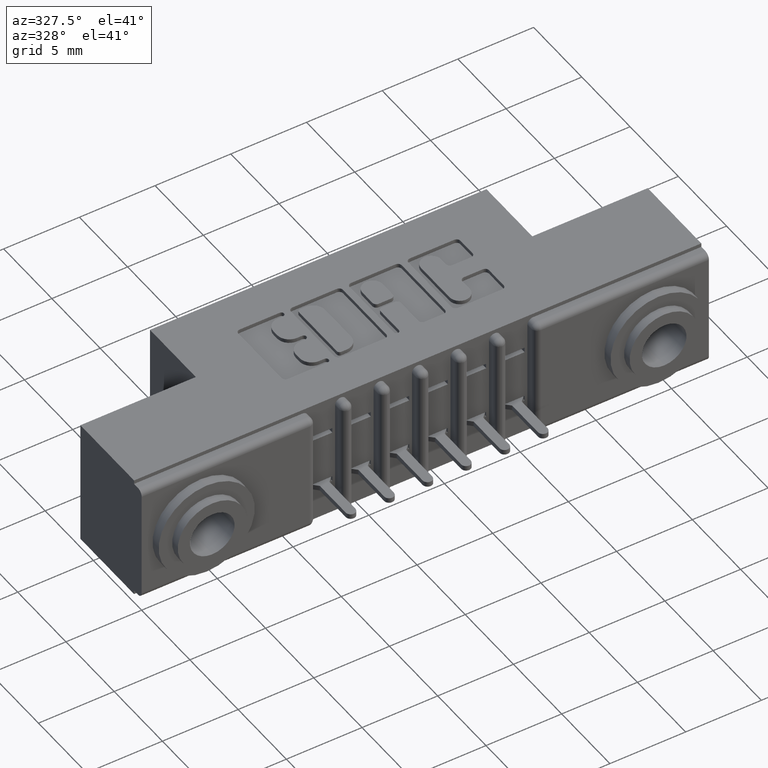
[diagram: clean part render]
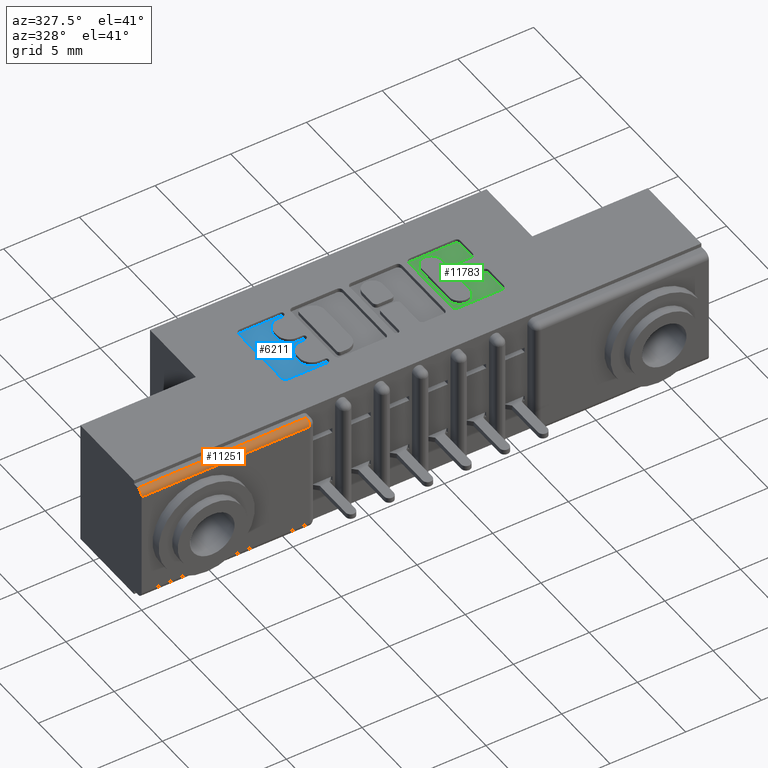
[diagram: same view with three faces highlighted in distinct colors, each labeled with its STEP entity id]
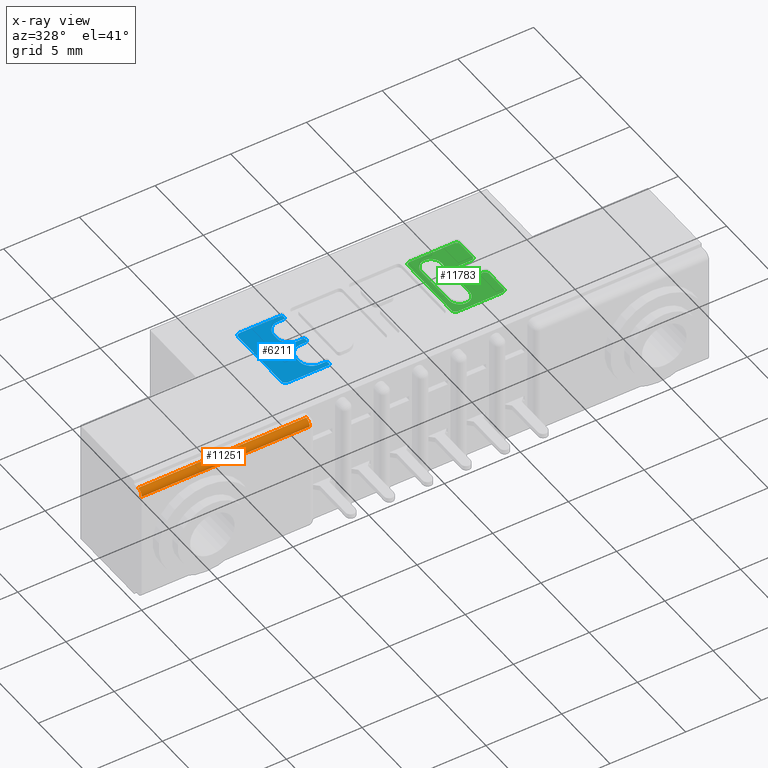
[diagram: x-ray of the same camera — body ghosted, the three highlighted faces saturated]
A machine part, auxiliary view with three faces highlighted in distinct colors.
The next image is the same camera in x-ray (body ghosted, the three faces saturated) — at least one of them is partly hidden behind the body in this view.
Their STEP definitions:

[orange] entity #11251 — the highlighted cylindrical surface (edge-blend (fillet) strip) has radius 0.381 mm, axis along (1, 0, 0).
#1072 = VERTEX_POINT ( 'NONE', #2945 ) ;
#1329 = ORIENTED_EDGE ( 'NONE', *, *, #2794, .F. ) ;
#2043 = EDGE_CURVE ( 'NONE', #11497, #4266, #11037, .T. ) ;
#2682 = AXIS2_PLACEMENT_3D ( 'NONE', #8222, #7206, #3949 ) ;
#2794 = EDGE_CURVE ( 'NONE', #4319, #4266, #7051, .T. ) ;
#2945 = CARTESIAN_POINT ( 'NONE',  ( 0.0000000000000000000, 0.0000000000000000000, -0.02499999999999997400 ) ) ;
#2958 = CARTESIAN_POINT ( 'NONE',  ( 0.0000000000000000000, 0.01499999999999999900, -0.009999999999999962000 ) ) ;
#3222 = LINE ( 'NONE', #10598, #5842 ) ;
#3321 = CARTESIAN_POINT ( 'NONE',  ( 0.4372500000000004200, 0.01499999999999999900, -0.02499999999999997400 ) ) ;
#3515 = EDGE_CURVE ( 'NONE', #1072, #4319, #4185, .T. ) ;
#3949 = DIRECTION ( 'NONE',  ( 0.0000000000000000000, 0.0000000000000000000, -1.000000000000000000 ) ) ;
#4185 = CIRCLE ( 'NONE', #10556, 0.01500000000000000300 ) ;
#4266 = VERTEX_POINT ( 'NONE', #6292 ) ;
#4319 = VERTEX_POINT ( 'NONE', #2958 ) ;
#4637 = CYLINDRICAL_SURFACE ( 'NONE', #2682, 0.01500000000000000300 ) ;
#4737 = EDGE_CURVE ( 'NONE', #11497, #1072, #3222, .T. ) ;
#5701 = DIRECTION ( 'NONE',  ( -1.000000000000000000, -0.0000000000000000000, -0.0000000000000000000 ) ) ;
#5842 = VECTOR ( 'NONE', #10474, 39.37007874015748100 ) ;
#6292 = CARTESIAN_POINT ( 'NONE',  ( 0.4372500000000003600, 0.01499999999999999900, -0.009999999999999962000 ) ) ;
#6641 = CARTESIAN_POINT ( 'NONE',  ( 1.474999999999999900, 0.01499999999999999900, -0.009999999999999962000 ) ) ;
#6996 = VECTOR ( 'NONE', #9693, 39.37007874015748100 ) ;
#7051 = LINE ( 'NONE', #6641, #6996 ) ;
#7206 = DIRECTION ( 'NONE',  ( 1.000000000000000000, 0.0000000000000000000, 0.0000000000000000000 ) ) ;
#7286 = DIRECTION ( 'NONE',  ( 0.0000000000000000000, 8.537024980200820800E-016, -1.000000000000000000 ) ) ;
#7652 = ORIENTED_EDGE ( 'NONE', *, *, #3515, .F. ) ;
#7653 = ORIENTED_EDGE ( 'NONE', *, *, #2043, .T. ) ;
#7729 = CARTESIAN_POINT ( 'NONE',  ( 0.4372500000000004200, 0.0000000000000000000, -0.02499999999999997400 ) ) ;
#8222 = CARTESIAN_POINT ( 'NONE',  ( 0.0000000000000000000, 0.01499999999999999900, -0.02499999999999997400 ) ) ;
#9693 = DIRECTION ( 'NONE',  ( 1.000000000000000000, -0.0000000000000000000, -0.0000000000000000000 ) ) ;
#10005 = CARTESIAN_POINT ( 'NONE',  ( 0.0000000000000000000, 0.01499999999999999900, -0.02499999999999997400 ) ) ;
#10051 = FACE_OUTER_BOUND ( 'NONE', #11731, .T. ) ;
#10422 = ORIENTED_EDGE ( 'NONE', *, *, #4737, .F. ) ;
#10474 = DIRECTION ( 'NONE',  ( -1.000000000000000000, 0.0000000000000000000, 0.0000000000000000000 ) ) ;
#10556 = AXIS2_PLACEMENT_3D ( 'NONE', #10005, #11801, #11510 ) ;
#10598 = CARTESIAN_POINT ( 'NONE',  ( 0.0000000000000000000, 0.0000000000000000000, -0.02499999999999997400 ) ) ;
#11037 = CIRCLE ( 'NONE', #12120, 0.01500000000000000300 ) ;
#11251 = ADVANCED_FACE ( 'NONE', ( #10051 ), #4637, .T. ) ;
#11497 = VERTEX_POINT ( 'NONE', #7729 ) ;
#11510 = DIRECTION ( 'NONE',  ( 0.0000000000000000000, 8.537024980200820800E-016, -1.000000000000000000 ) ) ;
#11731 = EDGE_LOOP ( 'NONE', ( #10422, #7653, #1329, #7652 ) ) ;
#11801 = DIRECTION ( 'NONE',  ( -1.000000000000000000, 0.0000000000000000000, -0.0000000000000000000 ) ) ;
#12120 = AXIS2_PLACEMENT_3D ( 'NONE', #3321, #5701, #7286 ) ;

[blue] entity #6211 — the highlighted planar face has unit normal (0, 0, 1).
#20 = CIRCLE ( 'NONE', #4023, 0.006870969142648501700 ) ;
#44 = VERTEX_POINT ( 'NONE', #2287 ) ;
#45 = VECTOR ( 'NONE', #357, 39.37007874015748100 ) ;
#88 = DIRECTION ( 'NONE',  ( -0.0000000000000000000, 0.0000000000000000000, 1.000000000000000000 ) ) ;
#90 = VERTEX_POINT ( 'NONE', #10873 ) ;
#357 = DIRECTION ( 'NONE',  ( 0.0000000000000000000, 1.000000000000000000, -0.0000000000000000000 ) ) ;
#398 = CARTESIAN_POINT ( 'NONE',  ( 0.5257269153529278100, 0.0000000000000000000, -0.01000000000000000000 ) ) ;
#420 = DIRECTION ( 'NONE',  ( 1.000000000000000000, 0.0000000000000000000, 0.0000000000000000000 ) ) ;
#439 = DIRECTION ( 'NONE',  ( -0.0000000000000000000, 0.0000000000000000000, 1.000000000000000000 ) ) ;
#456 = CARTESIAN_POINT ( 'NONE',  ( 0.4663421106199222000, 0.1456589681657917100, -0.01000000000000000000 ) ) ;
#488 = CIRCLE ( 'NONE', #1294, 0.03141014465217447500 ) ;
#507 = EDGE_CURVE ( 'NONE', #7103, #7727, #488, .T. ) ;
#602 = CARTESIAN_POINT ( 'NONE',  ( 0.5571370600050841200, 0.2408709691426856000, -0.01000000000000000000 ) ) ;
#605 = ORIENTED_EDGE ( 'NONE', *, *, #7739, .T. ) ;
#734 = VERTEX_POINT ( 'NONE', #9621 ) ;
#771 = LINE ( 'NONE', #6923, #9235 ) ;
#1149 = EDGE_LOOP ( 'NONE', ( #12683, #4167, #6771, #9206, #9382, #7443, #8518, #605, #3856, #8428, #2134, #3682, #6626, #9858, #3934, #5947, #7694, #9143, #5950, #1805, #9257 ) ) ;
#1161 = CARTESIAN_POINT ( 'NONE',  ( 0.5571370600051096500, 0.1495852362473103800, -0.01000000000000000000 ) ) ;
#1294 = AXIS2_PLACEMENT_3D ( 'NONE', #5989, #6071, #5555 ) ;
#1781 = EDGE_CURVE ( 'NONE', #2225, #7727, #3048, .T. ) ;
#1805 = ORIENTED_EDGE ( 'NONE', *, *, #507, .F. ) ;
#2006 = EDGE_CURVE ( 'NONE', #8549, #5697, #10999, .T. ) ;
#2030 = CIRCLE ( 'NONE', #9578, 0.006870969142662229500 ) ;
#2134 = ORIENTED_EDGE ( 'NONE', *, *, #4523, .T. ) ;
#2225 = VERTEX_POINT ( 'NONE', #6658 ) ;
#2287 = CARTESIAN_POINT ( 'NONE',  ( 0.5571370600051254200, 0.3184147637527374200, -0.01000000000000000000 ) ) ;
#2402 = CARTESIAN_POINT ( 'NONE',  ( 0.5706336064154143900, 0.1358432979619874600, -0.01000000000000000000 ) ) ;
#2611 = CARTESIAN_POINT ( 'NONE',  ( 0.5257269153529278100, 0.1809953808994921600, -0.01000000000000000000 ) ) ;
#2754 = DIRECTION ( 'NONE',  ( 0.0000000000000000000, 1.000000000000000000, -0.0000000000000000000 ) ) ;
#2795 = DIRECTION ( 'NONE',  ( -0.0000000000000000000, 0.0000000000000000000, 1.000000000000000000 ) ) ;
#2825 = VERTEX_POINT ( 'NONE', #6420 ) ;
#2838 = CIRCLE ( 'NONE', #10263, 0.03141014465215624000 ) ;
#2914 = CARTESIAN_POINT ( 'NONE',  ( 0.5257269153529096100, 0.0000000000000000000, -0.01000000000000000000 ) ) ;
#2957 = CARTESIAN_POINT ( 'NONE',  ( 0.4565264404161154500, 0.0000000000000000000, -0.01000000000000000000 ) ) ;
#3037 = EDGE_CURVE ( 'NONE', #9887, #8549, #6105, .T. ) ;
#3048 = LINE ( 'NONE', #10429, #4682 ) ;
#3096 = EDGE_CURVE ( 'NONE', #44, #7923, #5944, .T. ) ;
#3118 = VECTOR ( 'NONE', #9271, 39.37007874015748100 ) ;
#3184 = VERTEX_POINT ( 'NONE', #8115 ) ;
#3309 = EDGE_CURVE ( 'NONE', #3184, #11075, #4974, .T. ) ;
#3625 = VECTOR ( 'NONE', #2754, 39.37007874015748100 ) ;
#3682 = ORIENTED_EDGE ( 'NONE', *, *, #6086, .T. ) ;
#3706 = CARTESIAN_POINT ( 'NONE',  ( 0.5706336065353513300, 0.3321567020380344900, -0.01000000000000000000 ) ) ;
#3779 = EDGE_CURVE ( 'NONE', #9887, #734, #2838, .T. ) ;
#3799 = CIRCLE ( 'NONE', #6750, 0.009815670203805868300 ) ;
#3856 = ORIENTED_EDGE ( 'NONE', *, *, #7143, .T. ) ;
#3934 = ORIENTED_EDGE ( 'NONE', *, *, #3779, .F. ) ;
#4023 = AXIS2_PLACEMENT_3D ( 'NONE', #12245, #6953, #12925 ) ;
#4038 = VERTEX_POINT ( 'NONE', #12523 ) ;
#4167 = ORIENTED_EDGE ( 'NONE', *, *, #11655, .T. ) ;
#4516 = CARTESIAN_POINT ( 'NONE',  ( 0.0000000000000000000, 0.3321567020380344900, -0.01000000000000000000 ) ) ;
#4523 = EDGE_CURVE ( 'NONE', #10767, #4038, #2030, .T. ) ;
#4682 = VECTOR ( 'NONE', #10594, 39.37007874015748100 ) ;
#4974 = CIRCLE ( 'NONE', #10832, 0.006870969142648501700 ) ;
#4979 = VECTOR ( 'NONE', #10518, 39.37007874015748100 ) ;
#5084 = CIRCLE ( 'NONE', #8749, 0.03141014465218178200 ) ;
#5258 = EDGE_CURVE ( 'NONE', #11068, #734, #11328, .T. ) ;
#5495 = AXIS2_PLACEMENT_3D ( 'NONE', #9132, #2795, #10055 ) ;
#5515 = AXIS2_PLACEMENT_3D ( 'NONE', #7075, #88, #8089 ) ;
#5548 = EDGE_CURVE ( 'NONE', #11068, #8849, #5084, .T. ) ;
#5555 = DIRECTION ( 'NONE',  ( 1.000000000000000000, 0.0000000000000000000, 0.0000000000000000000 ) ) ;
#5697 = VERTEX_POINT ( 'NONE', #7090 ) ;
#5944 = CIRCLE ( 'NONE', #11190, 0.03141014465221585900 ) ;
#5947 = ORIENTED_EDGE ( 'NONE', *, *, #3037, .T. ) ;
#5950 = ORIENTED_EDGE ( 'NONE', *, *, #1781, .T. ) ;
#5989 = CARTESIAN_POINT ( 'NONE',  ( 0.5571370600050841200, 0.2722811137948600900, -0.01000000000000000000 ) ) ;
#6071 = DIRECTION ( 'NONE',  ( -0.0000000000000000000, 0.0000000000000000000, 1.000000000000000000 ) ) ;
#6086 = EDGE_CURVE ( 'NONE', #4038, #8849, #7277, .T. ) ;
#6087 = VECTOR ( 'NONE', #9670, 39.37007874015748100 ) ;
#6090 = CARTESIAN_POINT ( 'NONE',  ( 0.5706336065353355700, 0.1427142671046497100, -0.01000000000000000000 ) ) ;
#6105 = LINE ( 'NONE', #7551, #6087 ) ;
#6114 = CARTESIAN_POINT ( 'NONE',  ( 0.5571370600051254200, 0.2870046191005216100, -0.01000000000000000000 ) ) ;
#6128 = DIRECTION ( 'NONE',  ( -0.0000000000000000000, 0.0000000000000000000, 1.000000000000000000 ) ) ;
#6184 = DIRECTION ( 'NONE',  ( -0.0000000000000000000, 0.0000000000000000000, 1.000000000000000000 ) ) ;
#6211 = ADVANCED_FACE ( 'NONE', ( #7749 ), #7901, .T. ) ;
#6269 = DIRECTION ( 'NONE',  ( 1.000000000000000000, 0.0000000000000000000, 0.0000000000000000000 ) ) ;
#6420 = CARTESIAN_POINT ( 'NONE',  ( 0.4565264404161154500, 0.3223410318342118700, -0.01000000000000000000 ) ) ;
#6500 = LINE ( 'NONE', #7987, #11230 ) ;
#6513 = CARTESIAN_POINT ( 'NONE',  ( 0.5257269153529096100, 0.2870046191005216100, -0.01000000000000000000 ) ) ;
#6533 = EDGE_CURVE ( 'NONE', #7537, #10767, #10782, .T. ) ;
#6620 = VECTOR ( 'NONE', #10417, 39.37007874015748100 ) ;
#6626 = ORIENTED_EDGE ( 'NONE', *, *, #5548, .F. ) ;
#6658 = CARTESIAN_POINT ( 'NONE',  ( 0.5706336065353100300, 0.2408709691426856000, -0.01000000000000000000 ) ) ;
#6713 = VERTEX_POINT ( 'NONE', #10973 ) ;
#6750 = AXIS2_PLACEMENT_3D ( 'NONE', #456, #439, #420 ) ;
#6771 = ORIENTED_EDGE ( 'NONE', *, *, #10196, .T. ) ;
#6817 = DIRECTION ( 'NONE',  ( 1.000000000000000000, 6.876017002796120400E-015, 0.0000000000000000000 ) ) ;
#6896 = CARTESIAN_POINT ( 'NONE',  ( 0.5775045756779977300, 0.1427142671046497100, -0.01000000000000000000 ) ) ;
#6923 = CARTESIAN_POINT ( 'NONE',  ( -9.340608265024984900E-016, 0.1358432979619835200, -0.01000000000000000000 ) ) ;
#6953 = DIRECTION ( 'NONE',  ( -0.0000000000000000000, 0.0000000000000000000, 1.000000000000000000 ) ) ;
#6956 = VERTEX_POINT ( 'NONE', #8714 ) ;
#7075 = CARTESIAN_POINT ( 'NONE',  ( 0.5706336065353100300, 0.2340000000000221100, -0.01000000000000000000 ) ) ;
#7090 = CARTESIAN_POINT ( 'NONE',  ( 0.5775045756779735300, 0.2340000000000221100, -0.01000000000000000000 ) ) ;
#7103 = VERTEX_POINT ( 'NONE', #7511 ) ;
#7143 = EDGE_CURVE ( 'NONE', #6956, #7537, #771, .T. ) ;
#7219 = DIRECTION ( 'NONE',  ( -0.0000000000000000000, 0.0000000000000000000, 1.000000000000000000 ) ) ;
#7254 = CARTESIAN_POINT ( 'NONE',  ( 0.5706336065353513300, 0.3252857328953879800, -0.01000000000000000000 ) ) ;
#7277 = LINE ( 'NONE', #10751, #6620 ) ;
#7328 = DIRECTION ( 'NONE',  ( 1.000000000000000000, 0.0000000000000000000, 0.0000000000000000000 ) ) ;
#7443 = ORIENTED_EDGE ( 'NONE', *, *, #9037, .T. ) ;
#7465 = EDGE_CURVE ( 'NONE', #7103, #7923, #9522, .T. ) ;
#7482 = CARTESIAN_POINT ( 'NONE',  ( 0.5706336065353514500, 0.3184147637527374200, -0.01000000000000000000 ) ) ;
#7511 = CARTESIAN_POINT ( 'NONE',  ( 0.5257269153529096100, 0.2722811137948600900, -0.01000000000000000000 ) ) ;
#7526 = CIRCLE ( 'NONE', #5495, 0.009815670203822599700 ) ;
#7537 = VERTEX_POINT ( 'NONE', #2402 ) ;
#7551 = CARTESIAN_POINT ( 'NONE',  ( 0.0000000000000000000, 0.2271290308573585800, -0.01000000000000000000 ) ) ;
#7611 = DIRECTION ( 'NONE',  ( 1.000000000000000000, 0.0000000000000000000, 0.0000000000000000000 ) ) ;
#7680 = DIRECTION ( 'NONE',  ( -0.0000000000000000000, 0.0000000000000000000, 1.000000000000000000 ) ) ;
#7694 = ORIENTED_EDGE ( 'NONE', *, *, #2006, .T. ) ;
#7727 = VERTEX_POINT ( 'NONE', #602 ) ;
#7739 = EDGE_CURVE ( 'NONE', #90, #6956, #3799, .T. ) ;
#7749 = FACE_OUTER_BOUND ( 'NONE', #1149, .T. ) ;
#7778 = CARTESIAN_POINT ( 'NONE',  ( 0.0000000000000000000, 0.0000000000000000000, -0.01000000000000000000 ) ) ;
#7788 = AXIS2_PLACEMENT_3D ( 'NONE', #12432, #12425, #12411 ) ;
#7855 = VERTEX_POINT ( 'NONE', #7482 ) ;
#7901 = PLANE ( 'NONE',  #8066 ) ;
#7923 = VERTEX_POINT ( 'NONE', #6513 ) ;
#7987 = CARTESIAN_POINT ( 'NONE',  ( 0.0000000000000000000, 0.3184147637527374200, -0.01000000000000000000 ) ) ;
#8066 = AXIS2_PLACEMENT_3D ( 'NONE', #7778, #7680, #7611 ) ;
#8089 = DIRECTION ( 'NONE',  ( 1.000000000000000000, 0.0000000000000000000, 0.0000000000000000000 ) ) ;
#8115 = CARTESIAN_POINT ( 'NONE',  ( 0.5775045756779998400, 0.3252857328953879800, -0.01000000000000000000 ) ) ;
#8309 = DIRECTION ( 'NONE',  ( 1.000000000000000000, 0.0000000000000000000, 0.0000000000000000000 ) ) ;
#8375 = DIRECTION ( 'NONE',  ( -0.0000000000000000000, 0.0000000000000000000, 1.000000000000000000 ) ) ;
#8405 = EDGE_CURVE ( 'NONE', #2825, #90, #11151, .T. ) ;
#8428 = ORIENTED_EDGE ( 'NONE', *, *, #6533, .T. ) ;
#8518 = ORIENTED_EDGE ( 'NONE', *, *, #8405, .T. ) ;
#8549 = VERTEX_POINT ( 'NONE', #12629 ) ;
#8714 = CARTESIAN_POINT ( 'NONE',  ( 0.4663421106199185900, 0.1358432979619867400, -0.01000000000000000000 ) ) ;
#8749 = AXIS2_PLACEMENT_3D ( 'NONE', #12159, #12127, #12110 ) ;
#8849 = VERTEX_POINT ( 'NONE', #1161 ) ;
#8928 = DIRECTION ( 'NONE',  ( 1.000000000000000000, 0.0000000000000000000, 0.0000000000000000000 ) ) ;
#8972 = EDGE_CURVE ( 'NONE', #5697, #2225, #10870, .T. ) ;
#9037 = EDGE_CURVE ( 'NONE', #6713, #2825, #7526, .T. ) ;
#9132 = CARTESIAN_POINT ( 'NONE',  ( 0.4663421106199380800, 0.3223410318342118700, -0.01000000000000000000 ) ) ;
#9143 = ORIENTED_EDGE ( 'NONE', *, *, #8972, .T. ) ;
#9206 = ORIENTED_EDGE ( 'NONE', *, *, #3309, .T. ) ;
#9235 = VECTOR ( 'NONE', #6817, 39.37007874015748100 ) ;
#9257 = ORIENTED_EDGE ( 'NONE', *, *, #7465, .T. ) ;
#9271 = DIRECTION ( 'NONE',  ( 0.0000000000000000000, -1.000000000000000000, 0.0000000000000000000 ) ) ;
#9374 = EDGE_CURVE ( 'NONE', #11075, #6713, #12601, .T. ) ;
#9382 = ORIENTED_EDGE ( 'NONE', *, *, #9374, .T. ) ;
#9404 = CARTESIAN_POINT ( 'NONE',  ( 0.5571370600050841200, 0.2271290308573585800, -0.01000000000000000000 ) ) ;
#9522 = LINE ( 'NONE', #2914, #3625 ) ;
#9578 = AXIS2_PLACEMENT_3D ( 'NONE', #6090, #6184, #6269 ) ;
#9621 = CARTESIAN_POINT ( 'NONE',  ( 0.5257269153529278100, 0.1957188862052023100, -0.01000000000000000000 ) ) ;
#9670 = DIRECTION ( 'NONE',  ( 1.000000000000000000, 0.0000000000000000000, 0.0000000000000000000 ) ) ;
#9748 = DIRECTION ( 'NONE',  ( 1.000000000000000000, 0.0000000000000000000, 0.0000000000000000000 ) ) ;
#9769 = DIRECTION ( 'NONE',  ( -0.0000000000000000000, 0.0000000000000000000, 1.000000000000000000 ) ) ;
#9858 = ORIENTED_EDGE ( 'NONE', *, *, #5258, .T. ) ;
#9887 = VERTEX_POINT ( 'NONE', #9404 ) ;
#9969 = CARTESIAN_POINT ( 'NONE',  ( 0.5571370600050841200, 0.1957188862052023100, -0.01000000000000000000 ) ) ;
#10044 = DIRECTION ( 'NONE',  ( 1.000000000000000000, 0.0000000000000000000, 0.0000000000000000000 ) ) ;
#10055 = DIRECTION ( 'NONE',  ( 1.000000000000000000, 0.0000000000000000000, 0.0000000000000000000 ) ) ;
#10196 = EDGE_CURVE ( 'NONE', #7855, #3184, #20, .T. ) ;
#10263 = AXIS2_PLACEMENT_3D ( 'NONE', #9969, #9769, #9748 ) ;
#10417 = DIRECTION ( 'NONE',  ( -1.000000000000000000, -1.189163988687022500E-013, 0.0000000000000000000 ) ) ;
#10429 = CARTESIAN_POINT ( 'NONE',  ( 0.0000000000000000000, 0.2408709691426856000, -0.01000000000000000000 ) ) ;
#10518 = DIRECTION ( 'NONE',  ( -1.000000000000000000, 0.0000000000000000000, 0.0000000000000000000 ) ) ;
#10594 = DIRECTION ( 'NONE',  ( -1.000000000000000000, 0.0000000000000000000, 0.0000000000000000000 ) ) ;
#10751 = CARTESIAN_POINT ( 'NONE',  ( -1.778813761844634200E-014, 0.1495852362472441200, -0.01000000000000000000 ) ) ;
#10767 = VERTEX_POINT ( 'NONE', #6896 ) ;
#10782 = CIRCLE ( 'NONE', #7788, 0.006870969142662229500 ) ;
#10832 = AXIS2_PLACEMENT_3D ( 'NONE', #7254, #8375, #8309 ) ;
#10870 = CIRCLE ( 'NONE', #5515, 0.006870969142663527000 ) ;
#10873 = CARTESIAN_POINT ( 'NONE',  ( 0.4565264404161154500, 0.1456589681657917100, -0.01000000000000000000 ) ) ;
#10973 = CARTESIAN_POINT ( 'NONE',  ( 0.4663421106199380800, 0.3321567020380344900, -0.01000000000000000000 ) ) ;
#10999 = CIRCLE ( 'NONE', #12132, 0.006870969142663527000 ) ;
#11068 = VERTEX_POINT ( 'NONE', #2611 ) ;
#11075 = VERTEX_POINT ( 'NONE', #3706 ) ;
#11082 = CARTESIAN_POINT ( 'NONE',  ( 0.5706336065353100300, 0.2340000000000221100, -0.01000000000000000000 ) ) ;
#11151 = LINE ( 'NONE', #2957, #3118 ) ;
#11190 = AXIS2_PLACEMENT_3D ( 'NONE', #6114, #6128, #7328 ) ;
#11230 = VECTOR ( 'NONE', #8928, 39.37007874015748100 ) ;
#11328 = LINE ( 'NONE', #398, #45 ) ;
#11655 = EDGE_CURVE ( 'NONE', #44, #7855, #6500, .T. ) ;
#12110 = DIRECTION ( 'NONE',  ( 1.000000000000000000, 0.0000000000000000000, 0.0000000000000000000 ) ) ;
#12127 = DIRECTION ( 'NONE',  ( -0.0000000000000000000, 0.0000000000000000000, 1.000000000000000000 ) ) ;
#12132 = AXIS2_PLACEMENT_3D ( 'NONE', #11082, #7219, #10044 ) ;
#12159 = CARTESIAN_POINT ( 'NONE',  ( 0.5571370600051096500, 0.1809953808994921600, -0.01000000000000000000 ) ) ;
#12245 = CARTESIAN_POINT ( 'NONE',  ( 0.5706336065353513300, 0.3252857328953879800, -0.01000000000000000000 ) ) ;
#12411 = DIRECTION ( 'NONE',  ( 1.000000000000000000, 0.0000000000000000000, 0.0000000000000000000 ) ) ;
#12425 = DIRECTION ( 'NONE',  ( -0.0000000000000000000, 0.0000000000000000000, 1.000000000000000000 ) ) ;
#12432 = CARTESIAN_POINT ( 'NONE',  ( 0.5706336065353355700, 0.1427142671046497100, -0.01000000000000000000 ) ) ;
#12523 = CARTESIAN_POINT ( 'NONE',  ( 0.5706336064154143900, 0.1495852362473119600, -0.01000000000000000000 ) ) ;
#12601 = LINE ( 'NONE', #4516, #4979 ) ;
#12629 = CARTESIAN_POINT ( 'NONE',  ( 0.5706336064153888500, 0.2271290308573585800, -0.01000000000000000000 ) ) ;
#12683 = ORIENTED_EDGE ( 'NONE', *, *, #3096, .F. ) ;
#12925 = DIRECTION ( 'NONE',  ( 1.000000000000000000, 0.0000000000000000000, 0.0000000000000000000 ) ) ;

[green] entity #11783 — the highlighted planar face has unit normal (0, 0, 1).
#287 = EDGE_CURVE ( 'NONE', #4441, #4814, #1847, .T. ) ;
#371 = ORIENTED_EDGE ( 'NONE', *, *, #5254, .T. ) ;
#447 = CIRCLE ( 'NONE', #8614, 0.009815670203787221800 ) ;
#511 = CARTESIAN_POINT ( 'NONE',  ( 0.0000000000000000000, 0.2629562271012354000, -0.01000000000000000000 ) ) ;
#549 = DIRECTION ( 'NONE',  ( 1.000000000000000000, 0.0000000000000000000, 0.0000000000000000000 ) ) ;
#575 = VERTEX_POINT ( 'NONE', #5760 ) ;
#579 = AXIS2_PLACEMENT_3D ( 'NONE', #622, #8469, #1917 ) ;
#622 = CARTESIAN_POINT ( 'NONE',  ( 1.024362961706132100, 0.3223410318342127500, -0.01000000000000000000 ) ) ;
#768 = VECTOR ( 'NONE', #8920, 39.37007874015748100 ) ;
#819 = CARTESIAN_POINT ( 'NONE',  ( 0.9124643213828184100, 0.2921578459575313600, -0.01000000000000000000 ) ) ;
#867 = LINE ( 'NONE', #9605, #768 ) ;
#1055 = DIRECTION ( 'NONE',  ( -0.0000000000000000000, 0.0000000000000000000, 1.000000000000000000 ) ) ;
#1109 = VERTEX_POINT ( 'NONE', #3732 ) ;
#1123 = VERTEX_POINT ( 'NONE', #2164 ) ;
#1171 = DIRECTION ( 'NONE',  ( -0.0000000000000000000, 0.0000000000000000000, 1.000000000000000000 ) ) ;
#1206 = VERTEX_POINT ( 'NONE', #4407 ) ;
#1238 = ORIENTED_EDGE ( 'NONE', *, *, #9796, .T. ) ;
#1399 = ORIENTED_EDGE ( 'NONE', *, *, #5678, .F. ) ;
#1576 = VERTEX_POINT ( 'NONE', #10068 ) ;
#1580 = VECTOR ( 'NONE', #9136, 39.37007874015748100 ) ;
#1779 = DIRECTION ( 'NONE',  ( -1.000000000000000000, 0.0000000000000000000, 0.0000000000000000000 ) ) ;
#1809 = ORIENTED_EDGE ( 'NONE', *, *, #2446, .T. ) ;
#1847 = LINE ( 'NONE', #5536, #1580 ) ;
#1885 = CARTESIAN_POINT ( 'NONE',  ( 0.9649781569731659100, 0.2921578454992616600, -0.01000000000000000000 ) ) ;
#1892 = EDGE_CURVE ( 'NONE', #3261, #4441, #11249, .T. ) ;
#1917 = DIRECTION ( 'NONE',  ( 1.000000000000000000, 0.0000000000000000000, 0.0000000000000000000 ) ) ;
#1958 = AXIS2_PLACEMENT_3D ( 'NONE', #8161, #12415, #7193 ) ;
#1983 = ORIENTED_EDGE ( 'NONE', *, *, #1892, .T. ) ;
#2102 = DIRECTION ( 'NONE',  ( -0.0000000000000000000, 0.0000000000000000000, 1.000000000000000000 ) ) ;
#2123 = VERTEX_POINT ( 'NONE', #10831 ) ;
#2128 = FACE_OUTER_BOUND ( 'NONE', #8610, .T. ) ;
#2164 = CARTESIAN_POINT ( 'NONE',  ( 0.9649781569731790100, 0.1758421540424547600, -0.01000000000000000000 ) ) ;
#2353 = VECTOR ( 'NONE', #9363, 39.37007874015748100 ) ;
#2377 = VECTOR ( 'NONE', #4483, 39.37007874015748100 ) ;
#2388 = CARTESIAN_POINT ( 'NONE',  ( 0.9649781569731790100, 0.2055345564089704500, -0.01000000000000000000 ) ) ;
#2446 = EDGE_CURVE ( 'NONE', #1109, #7560, #8927, .T. ) ;
#2818 = DIRECTION ( 'NONE',  ( 1.000000000000000000, 0.0000000000000000000, 0.0000000000000000000 ) ) ;
#2854 = EDGE_CURVE ( 'NONE', #2123, #1109, #6952, .T. ) ;
#2959 = DIRECTION ( 'NONE',  ( -0.0000000000000000000, 0.0000000000000000000, 1.000000000000000000 ) ) ;
#3033 = AXIS2_PLACEMENT_3D ( 'NONE', #7911, #1171, #8868 ) ;
#3218 = VERTEX_POINT ( 'NONE', #1885 ) ;
#3251 = CIRCLE ( 'NONE', #4896, 0.009815670203806754800 ) ;
#3261 = VERTEX_POINT ( 'NONE', #9594 ) ;
#3336 = CARTESIAN_POINT ( 'NONE',  ( 1.024362961706134300, 0.1456589681657917100, -0.01000000000000000000 ) ) ;
#3346 = LINE ( 'NONE', #8337, #8669 ) ;
#3478 = DIRECTION ( 'NONE',  ( 0.0000000000000000000, -1.000000000000000000, 0.0000000000000000000 ) ) ;
#3630 = AXIS2_PLACEMENT_3D ( 'NONE', #6266, #12512, #7337 ) ;
#3679 = DIRECTION ( 'NONE',  ( -0.0000000000000000000, 0.0000000000000000000, 1.000000000000000000 ) ) ;
#3732 = CARTESIAN_POINT ( 'NONE',  ( 0.9747938271769670500, 0.2153502266127593200, -0.01000000000000000000 ) ) ;
#3939 = ORIENTED_EDGE ( 'NONE', *, *, #10616, .T. ) ;
#4175 = VECTOR ( 'NONE', #11886, 39.37007874015748100 ) ;
#4189 = VECTOR ( 'NONE', #7432, 39.37007874015748100 ) ;
#4196 = EDGE_CURVE ( 'NONE', #12190, #10076, #867, .T. ) ;
#4407 = CARTESIAN_POINT ( 'NONE',  ( 0.9085380533012653600, 0.1358432979619849400, -0.01000000000000000000 ) ) ;
#4441 = VERTEX_POINT ( 'NONE', #12559 ) ;
#4483 = DIRECTION ( 'NONE',  ( 1.000000000000000000, 0.0000000000000000000, 0.0000000000000000000 ) ) ;
#4498 = CARTESIAN_POINT ( 'NONE',  ( 1.034178631909940200, 0.2055345564089722000, -0.01000000000000000000 ) ) ;
#4513 = ORIENTED_EDGE ( 'NONE', *, *, #9519, .T. ) ;
#4546 = EDGE_CURVE ( 'NONE', #5758, #12190, #5898, .T. ) ;
#4600 = CARTESIAN_POINT ( 'NONE',  ( 0.9649781569731790100, 0.0000000000000000000, -0.01000000000000000000 ) ) ;
#4760 = CIRCLE ( 'NONE', #579, 0.009815670203840084000 ) ;
#4807 = CARTESIAN_POINT ( 'NONE',  ( 0.9124643213828184100, 0.1758421540424547600, -0.01000000000000000000 ) ) ;
#4814 = VERTEX_POINT ( 'NONE', #8747 ) ;
#4896 = AXIS2_PLACEMENT_3D ( 'NONE', #9875, #3679, #10761 ) ;
#5039 = CARTESIAN_POINT ( 'NONE',  ( 0.9085380533012994400, 0.3321567020380528100, -0.01000000000000000000 ) ) ;
#5070 = CARTESIAN_POINT ( 'NONE',  ( 0.8987223830974585500, 0.1456589681657917100, -0.01000000000000000000 ) ) ;
#5086 = ORIENTED_EDGE ( 'NONE', *, *, #5659, .T. ) ;
#5231 = ORIENTED_EDGE ( 'NONE', *, *, #12208, .T. ) ;
#5254 = EDGE_CURVE ( 'NONE', #9959, #3261, #6649, .T. ) ;
#5435 = DIRECTION ( 'NONE',  ( 1.000000000000000000, 0.0000000000000000000, 0.0000000000000000000 ) ) ;
#5536 = CARTESIAN_POINT ( 'NONE',  ( 1.034178631909972200, 0.0000000000000000000, -0.01000000000000000000 ) ) ;
#5659 = EDGE_CURVE ( 'NONE', #10076, #2123, #447, .T. ) ;
#5664 = EDGE_CURVE ( 'NONE', #3218, #575, #3346, .T. ) ;
#5678 = EDGE_CURVE ( 'NONE', #3218, #7701, #11320, .T. ) ;
#5738 = AXIS2_PLACEMENT_3D ( 'NONE', #7814, #1055, #8778 ) ;
#5758 = VERTEX_POINT ( 'NONE', #6205 ) ;
#5760 = CARTESIAN_POINT ( 'NONE',  ( 0.9649781569731659100, 0.2727718973050469700, -0.01000000000000000000 ) ) ;
#5807 = VERTEX_POINT ( 'NONE', #5039 ) ;
#5813 = VERTEX_POINT ( 'NONE', #4807 ) ;
#5898 = CIRCLE ( 'NONE', #9529, 0.009815670203806345400 ) ;
#6205 = CARTESIAN_POINT ( 'NONE',  ( 1.024362961706134300, 0.1358432979619849400, -0.01000000000000000000 ) ) ;
#6256 = EDGE_CURVE ( 'NONE', #9351, #7304, #9973, .T. ) ;
#6261 = ORIENTED_EDGE ( 'NONE', *, *, #287, .T. ) ;
#6266 = CARTESIAN_POINT ( 'NONE',  ( 0.9387212391779987700, 0.1758421540424547600, -0.01000000000000000000 ) ) ;
#6506 = ORIENTED_EDGE ( 'NONE', *, *, #8734, .T. ) ;
#6508 = CARTESIAN_POINT ( 'NONE',  ( 0.9747938271769776000, 0.2629562271012354000, -0.01000000000000000000 ) ) ;
#6581 = EDGE_CURVE ( 'NONE', #5813, #7701, #7112, .T. ) ;
#6649 = LINE ( 'NONE', #511, #11577 ) ;
#6687 = ORIENTED_EDGE ( 'NONE', *, *, #5664, .T. ) ;
#6952 = LINE ( 'NONE', #8324, #6955 ) ;
#6955 = VECTOR ( 'NONE', #1779, 39.37007874015748100 ) ;
#7112 = LINE ( 'NONE', #11970, #4175 ) ;
#7193 = DIRECTION ( 'NONE',  ( 1.000000000000000000, 0.0000000000000000000, 0.0000000000000000000 ) ) ;
#7304 = VERTEX_POINT ( 'NONE', #5070 ) ;
#7337 = DIRECTION ( 'NONE',  ( 1.000000000000000000, 0.0000000000000000000, 0.0000000000000000000 ) ) ;
#7432 = DIRECTION ( 'NONE',  ( 0.0000000000000000000, -1.000000000000000000, 0.0000000000000000000 ) ) ;
#7449 = CARTESIAN_POINT ( 'NONE',  ( 0.8987223830974585500, 0.0000000000000000000, -0.01000000000000000000 ) ) ;
#7560 = VERTEX_POINT ( 'NONE', #2388 ) ;
#7569 = DIRECTION ( 'NONE',  ( 1.000000000000000000, 0.0000000000000000000, 0.0000000000000000000 ) ) ;
#7595 = ORIENTED_EDGE ( 'NONE', *, *, #6256, .T. ) ;
#7626 = DIRECTION ( 'NONE',  ( -0.0000000000000000000, 0.0000000000000000000, 1.000000000000000000 ) ) ;
#7630 = DIRECTION ( 'NONE',  ( -0.0000000000000000000, 0.0000000000000000000, 1.000000000000000000 ) ) ;
#7647 = CARTESIAN_POINT ( 'NONE',  ( 0.9387212391779922200, 0.2921578459575313600, -0.01000000000000000000 ) ) ;
#7701 = VERTEX_POINT ( 'NONE', #819 ) ;
#7814 = CARTESIAN_POINT ( 'NONE',  ( 0.9747938271769776000, 0.2727718973050469700, -0.01000000000000000000 ) ) ;
#7815 = ORIENTED_EDGE ( 'NONE', *, *, #4196, .T. ) ;
#7911 = CARTESIAN_POINT ( 'NONE',  ( 0.9085380533012994400, 0.3223410318342118700, -0.01000000000000000000 ) ) ;
#8139 = LINE ( 'NONE', #11840, #2353 ) ;
#8161 = CARTESIAN_POINT ( 'NONE',  ( 0.0000000000000000000, 0.0000000000000000000, -0.01000000000000000000 ) ) ;
#8320 = CIRCLE ( 'NONE', #5738, 0.009815670203811672700 ) ;
#8324 = CARTESIAN_POINT ( 'NONE',  ( 0.0000000000000000000, 0.2153502266127593200, -0.01000000000000000000 ) ) ;
#8325 = DIRECTION ( 'NONE',  ( 0.0000000000000000000, -1.000000000000000000, 0.0000000000000000000 ) ) ;
#8337 = CARTESIAN_POINT ( 'NONE',  ( 0.9649781569731659100, 0.0000000000000000000, -0.01000000000000000000 ) ) ;
#8418 = DIRECTION ( 'NONE',  ( 1.000000000000000000, 0.0000000000000000000, 0.0000000000000000000 ) ) ;
#8454 = DIRECTION ( 'NONE',  ( -0.0000000000000000000, 0.0000000000000000000, 1.000000000000000000 ) ) ;
#8469 = DIRECTION ( 'NONE',  ( -0.0000000000000000000, 0.0000000000000000000, 1.000000000000000000 ) ) ;
#8478 = CARTESIAN_POINT ( 'NONE',  ( 1.024362961706153200, 0.2055345564089722000, -0.01000000000000000000 ) ) ;
#8582 = AXIS2_PLACEMENT_3D ( 'NONE', #7647, #7626, #7569 ) ;
#8610 = EDGE_LOOP ( 'NONE', ( #371, #1983, #6261, #10007, #1238, #9041, #7595, #4513, #3939, #11176, #7815, #5086, #10922, #1809, #5231, #8934, #9801, #1399, #6687, #6506 ) ) ;
#8614 = AXIS2_PLACEMENT_3D ( 'NONE', #8478, #8454, #8418 ) ;
#8669 = VECTOR ( 'NONE', #8325, 39.37007874015748100 ) ;
#8734 = EDGE_CURVE ( 'NONE', #575, #9959, #8320, .T. ) ;
#8747 = CARTESIAN_POINT ( 'NONE',  ( 1.034178631909972200, 0.3223410318341965500, -0.01000000000000000000 ) ) ;
#8759 = CARTESIAN_POINT ( 'NONE',  ( 1.034178631909940200, 0.1456589681657847500, -0.01000000000000000000 ) ) ;
#8778 = DIRECTION ( 'NONE',  ( 1.000000000000000000, 0.0000000000000000000, 0.0000000000000000000 ) ) ;
#8868 = DIRECTION ( 'NONE',  ( 1.000000000000000000, 0.0000000000000000000, 0.0000000000000000000 ) ) ;
#8920 = DIRECTION ( 'NONE',  ( 0.0000000000000000000, 1.000000000000000000, -0.0000000000000000000 ) ) ;
#8927 = CIRCLE ( 'NONE', #11762, 0.009815670203788042300 ) ;
#8934 = ORIENTED_EDGE ( 'NONE', *, *, #10444, .F. ) ;
#9041 = ORIENTED_EDGE ( 'NONE', *, *, #11008, .T. ) ;
#9136 = DIRECTION ( 'NONE',  ( 0.0000000000000000000, 1.000000000000000000, -0.0000000000000000000 ) ) ;
#9351 = VERTEX_POINT ( 'NONE', #10483 ) ;
#9355 = CIRCLE ( 'NONE', #3630, 0.02625691779518036400 ) ;
#9363 = DIRECTION ( 'NONE',  ( -1.000000000000000000, 0.0000000000000000000, 0.0000000000000000000 ) ) ;
#9519 = EDGE_CURVE ( 'NONE', #7304, #1206, #3251, .T. ) ;
#9529 = AXIS2_PLACEMENT_3D ( 'NONE', #3336, #2959, #2818 ) ;
#9594 = CARTESIAN_POINT ( 'NONE',  ( 1.024362961706167100, 0.2629562271012354000, -0.01000000000000000000 ) ) ;
#9598 = VECTOR ( 'NONE', #3478, 39.37007874015748100 ) ;
#9605 = CARTESIAN_POINT ( 'NONE',  ( 1.034178631909940200, 0.0000000000000000000, -0.01000000000000000000 ) ) ;
#9796 = EDGE_CURVE ( 'NONE', #1576, #5807, #8139, .T. ) ;
#9801 = ORIENTED_EDGE ( 'NONE', *, *, #6581, .T. ) ;
#9875 = CARTESIAN_POINT ( 'NONE',  ( 0.9085380533012653600, 0.1456589681657917100, -0.01000000000000000000 ) ) ;
#9907 = CIRCLE ( 'NONE', #3033, 0.009815670203840902800 ) ;
#9959 = VERTEX_POINT ( 'NONE', #6508 ) ;
#9973 = LINE ( 'NONE', #7449, #4189 ) ;
#10007 = ORIENTED_EDGE ( 'NONE', *, *, #12644, .T. ) ;
#10048 = PLANE ( 'NONE',  #1958 ) ;
#10068 = CARTESIAN_POINT ( 'NONE',  ( 1.024362961706168500, 0.3321567020380528100, -0.01000000000000000000 ) ) ;
#10076 = VERTEX_POINT ( 'NONE', #4498 ) ;
#10444 = EDGE_CURVE ( 'NONE', #5813, #1123, #9355, .T. ) ;
#10483 = CARTESIAN_POINT ( 'NONE',  ( 0.8987223830974585500, 0.3223410318342118700, -0.01000000000000000000 ) ) ;
#10616 = EDGE_CURVE ( 'NONE', #1206, #5758, #12604, .T. ) ;
#10761 = DIRECTION ( 'NONE',  ( 1.000000000000000000, 0.0000000000000000000, 0.0000000000000000000 ) ) ;
#10831 = CARTESIAN_POINT ( 'NONE',  ( 1.024362961706156700, 0.2153502266127593200, -0.01000000000000000000 ) ) ;
#10922 = ORIENTED_EDGE ( 'NONE', *, *, #2854, .T. ) ;
#11008 = EDGE_CURVE ( 'NONE', #5807, #9351, #9907, .T. ) ;
#11176 = ORIENTED_EDGE ( 'NONE', *, *, #4546, .T. ) ;
#11249 = CIRCLE ( 'NONE', #12297, 0.009815670203804980100 ) ;
#11320 = CIRCLE ( 'NONE', #8582, 0.02625691779517380600 ) ;
#11577 = VECTOR ( 'NONE', #549, 39.37007874015748100 ) ;
#11761 = CARTESIAN_POINT ( 'NONE',  ( 1.024362961706167100, 0.2727718973050404200, -0.01000000000000000000 ) ) ;
#11762 = AXIS2_PLACEMENT_3D ( 'NONE', #12824, #7630, #12290 ) ;
#11783 = ADVANCED_FACE ( 'NONE', ( #2128 ), #10048, .T. ) ;
#11840 = CARTESIAN_POINT ( 'NONE',  ( 0.0000000000000000000, 0.3321567020380528100, -0.01000000000000000000 ) ) ;
#11886 = DIRECTION ( 'NONE',  ( 0.0000000000000000000, 1.000000000000000000, -0.0000000000000000000 ) ) ;
#11970 = CARTESIAN_POINT ( 'NONE',  ( 0.9124643213828184100, 0.0000000000000000000, -0.01000000000000000000 ) ) ;
#12018 = LINE ( 'NONE', #4600, #9598 ) ;
#12037 = CARTESIAN_POINT ( 'NONE',  ( 0.0000000000000000000, 0.1358432979619849400, -0.01000000000000000000 ) ) ;
#12190 = VERTEX_POINT ( 'NONE', #8759 ) ;
#12208 = EDGE_CURVE ( 'NONE', #7560, #1123, #12018, .T. ) ;
#12290 = DIRECTION ( 'NONE',  ( 1.000000000000000000, 0.0000000000000000000, 0.0000000000000000000 ) ) ;
#12297 = AXIS2_PLACEMENT_3D ( 'NONE', #11761, #2102, #5435 ) ;
#12415 = DIRECTION ( 'NONE',  ( -0.0000000000000000000, 0.0000000000000000000, 1.000000000000000000 ) ) ;
#12512 = DIRECTION ( 'NONE',  ( -0.0000000000000000000, 0.0000000000000000000, 1.000000000000000000 ) ) ;
#12559 = CARTESIAN_POINT ( 'NONE',  ( 1.034178631909972200, 0.2727718973050404200, -0.01000000000000000000 ) ) ;
#12604 = LINE ( 'NONE', #12037, #2377 ) ;
#12644 = EDGE_CURVE ( 'NONE', #4814, #1576, #4760, .T. ) ;
#12824 = CARTESIAN_POINT ( 'NONE',  ( 0.9747938271769670500, 0.2055345564089713100, -0.01000000000000000000 ) ) ;